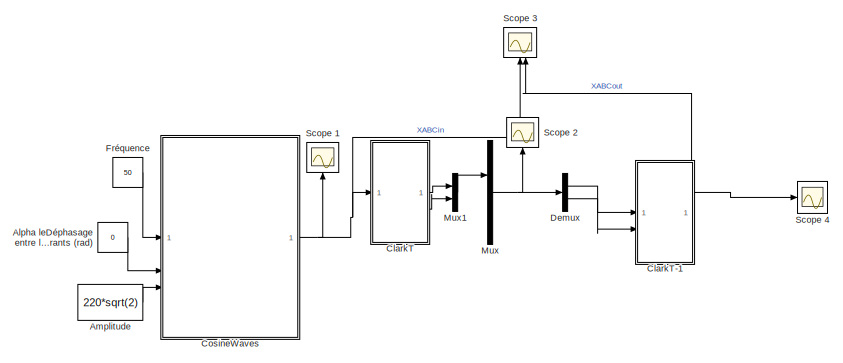
[diagram: root canvas - part 1/2, top center region]
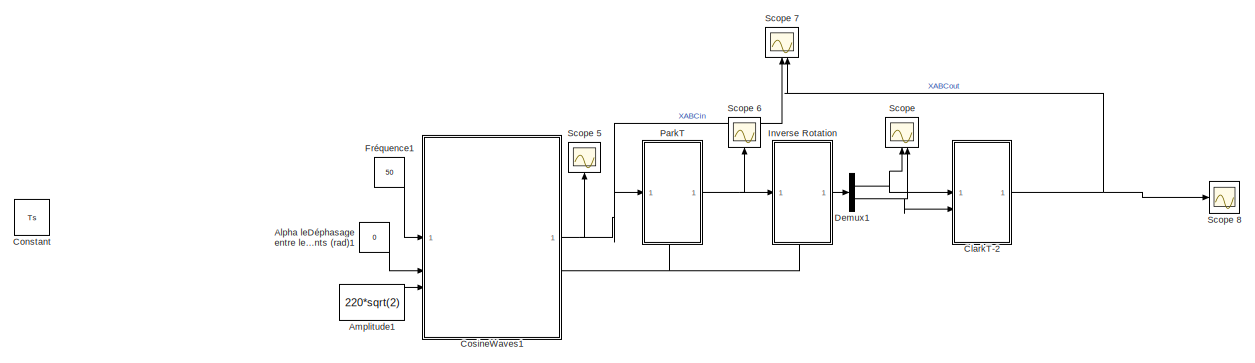
[diagram: root canvas - part 2/2, full width, bottom band]
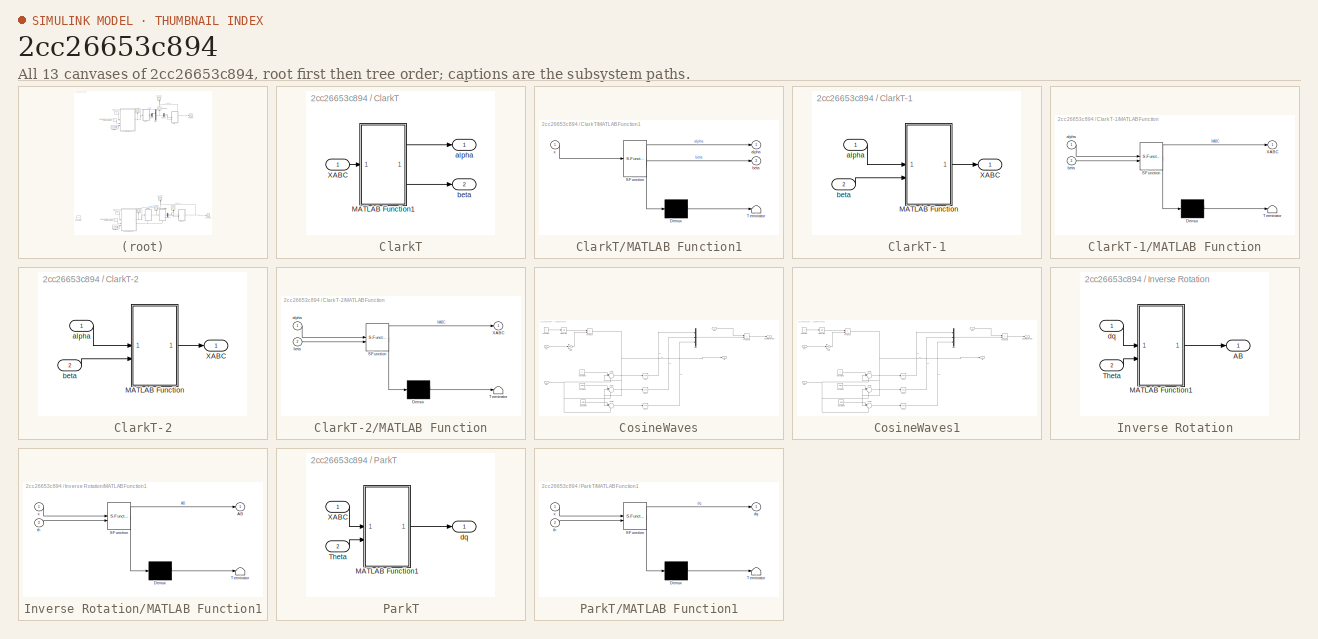
[diagram: thumbnail index - all 13 canvases of the model, root first then tree order]
MODEL slx_2cc26653c894
KIND model
CONFIG AbsTol = auto
CONFIG EnableMultiTasking = off
CONFIG FixedStep = 1e-5
CONFIG MaxStep = auto
CONFIG MinStep = auto
CONFIG RelTol = 1e-3
CONFIG SampleTimeConstraint = Unconstrained
CONFIG SolverName = ode4
CONFIG StartTime = 0.0
CONFIG StopTime = 10.0
BLOCK [Constant] Alpha leDéphasage entre les courants (rad)
  Value = 0
BLOCK [Constant] Alpha leDéphasage entre les courants (rad)1
  Value = 0
BLOCK [Constant] Amplitude
  Value = 220*sqrt(2)
BLOCK [Constant] Amplitude1
  Value = 220*sqrt(2)
BLOCK [SubSystem] ClarkT
BLOCK [SubSystem] ClarkT-1
BLOCK [SubSystem] ClarkT-1/MATLAB Function
  ErrorFcn = Stateflow.Translate.translate
  PermitHierarchicalResolution = ExplicitOnly
  SFBlockType = MATLAB Function
  TreatAsAtomicUnit = on
BLOCK [Demux] ClarkT-1/MATLAB Function/ Demux 
  Outputs = 1
BLOCK [S-Function] ClarkT-1/MATLAB Function/ SFunction 
  EnableBusSupport = on
  FunctionName = sf_sfun
  PortCounts = [2 2]
  SFcnIsStateOwnerBlock = off
  SFunctionDeploymentMode = off
  Tag = Stateflow S-Function 2
BLOCK [Terminator] ClarkT-1/MATLAB Function/ Terminator 
BLOCK [Outport] ClarkT-1/MATLAB Function/XABC
BLOCK [Inport] ClarkT-1/MATLAB Function/alpha
BLOCK [Inport] ClarkT-1/MATLAB Function/beta
  Port = 2
BLOCK [Outport] ClarkT-1/XABC
BLOCK [Inport] ClarkT-1/alpha
BLOCK [Inport] ClarkT-1/beta
  Port = 2
BLOCK [SubSystem] ClarkT-2
BLOCK [SubSystem] ClarkT-2/MATLAB Function
  ErrorFcn = Stateflow.Translate.translate
  PermitHierarchicalResolution = ExplicitOnly
  SFBlockType = MATLAB Function
  TreatAsAtomicUnit = on
BLOCK [Demux] ClarkT-2/MATLAB Function/ Demux 
  Outputs = 1
BLOCK [S-Function] ClarkT-2/MATLAB Function/ SFunction 
  EnableBusSupport = on
  FunctionName = sf_sfun
  PortCounts = [2 2]
  SFcnIsStateOwnerBlock = off
  SFunctionDeploymentMode = off
  Tag = Stateflow S-Function 3
BLOCK [Terminator] ClarkT-2/MATLAB Function/ Terminator 
BLOCK [Outport] ClarkT-2/MATLAB Function/XABC
BLOCK [Inport] ClarkT-2/MATLAB Function/alpha
BLOCK [Inport] ClarkT-2/MATLAB Function/beta
  Port = 2
BLOCK [Outport] ClarkT-2/XABC
BLOCK [Inport] ClarkT-2/alpha
BLOCK [Inport] ClarkT-2/beta
  Port = 2
BLOCK [SubSystem] ClarkT/MATLAB Function1
  ErrorFcn = Stateflow.Translate.translate
  PermitHierarchicalResolution = ExplicitOnly
  SFBlockType = MATLAB Function
  TreatAsAtomicUnit = on
BLOCK [Demux] ClarkT/MATLAB Function1/ Demux 
  Outputs = 1
BLOCK [S-Function] ClarkT/MATLAB Function1/ SFunction 
  EnableBusSupport = on
  FunctionName = sf_sfun
  PortCounts = [1 3]
  SFcnIsStateOwnerBlock = off
  SFunctionDeploymentMode = off
  Tag = Stateflow S-Function 1
BLOCK [Terminator] ClarkT/MATLAB Function1/ Terminator 
BLOCK [Outport] ClarkT/MATLAB Function1/alpha
BLOCK [Outport] ClarkT/MATLAB Function1/beta
  Port = 2
BLOCK [Inport] ClarkT/MATLAB Function1/x
BLOCK [Inport] ClarkT/XABC
BLOCK [Outport] ClarkT/alpha
BLOCK [Outport] ClarkT/beta
  Port = 2
BLOCK [Constant] Constant
  Commented = on
  Value = Ts
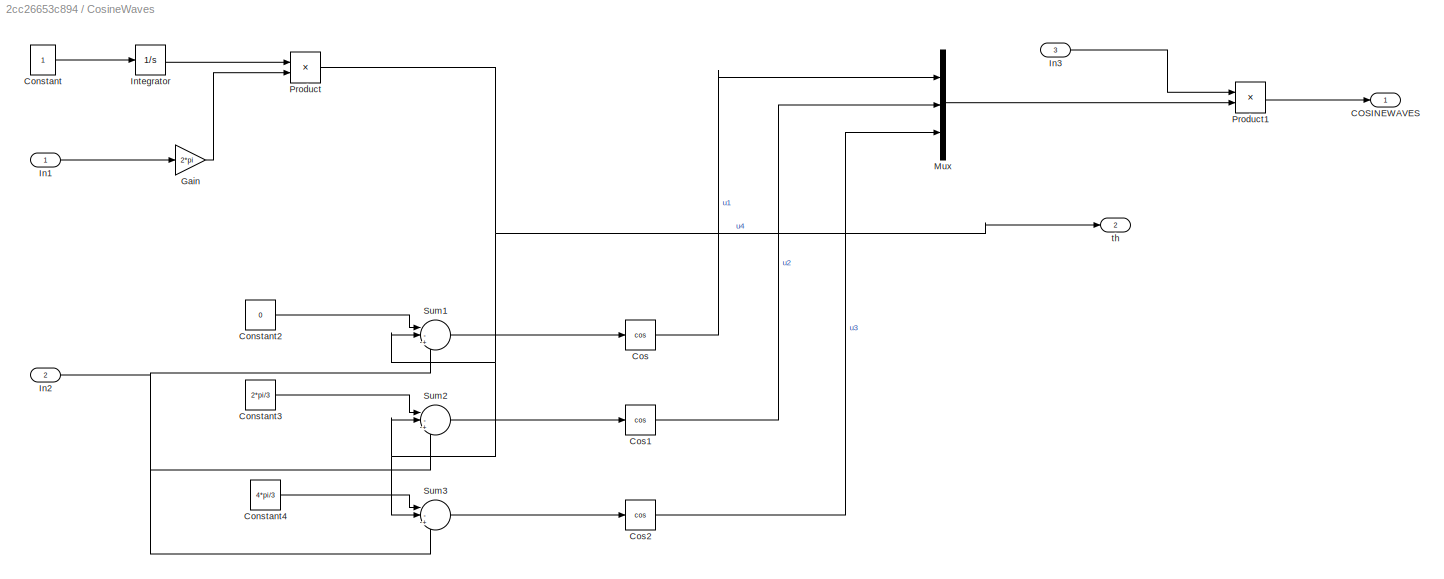
BLOCK [SubSystem] CosineWaves
BLOCK [Outport] CosineWaves/COSINEWAVES
BLOCK [Constant] CosineWaves/Constant
BLOCK [Constant] CosineWaves/Constant2
  Value = 0
BLOCK [Constant] CosineWaves/Constant3
  Value = 2*pi/3
BLOCK [Constant] CosineWaves/Constant4
  Value = 4*pi/3
BLOCK [Trigonometry] CosineWaves/Cos
  Operator = cos
BLOCK [Trigonometry] CosineWaves/Cos1
  Operator = cos
BLOCK [Trigonometry] CosineWaves/Cos2
  Operator = cos
BLOCK [Gain] CosineWaves/Gain
  Gain = 2*pi
BLOCK [Inport] CosineWaves/In1
BLOCK [Inport] CosineWaves/In2
  Port = 2
BLOCK [Inport] CosineWaves/In3
  Port = 3
BLOCK [Integrator] CosineWaves/Integrator
BLOCK [Mux] CosineWaves/Mux
  DisplayOption = bar
  Inputs = 3
BLOCK [Product] CosineWaves/Product
BLOCK [Product] CosineWaves/Product1
BLOCK [Sum] CosineWaves/Sum1
  Inputs = |-+|+
  NameLocation = top
BLOCK [Sum] CosineWaves/Sum2
  Inputs = |-+|+
  NameLocation = top
BLOCK [Sum] CosineWaves/Sum3
  Inputs = |-+|+
  NameLocation = top
BLOCK [Outport] CosineWaves/th
  Port = 2
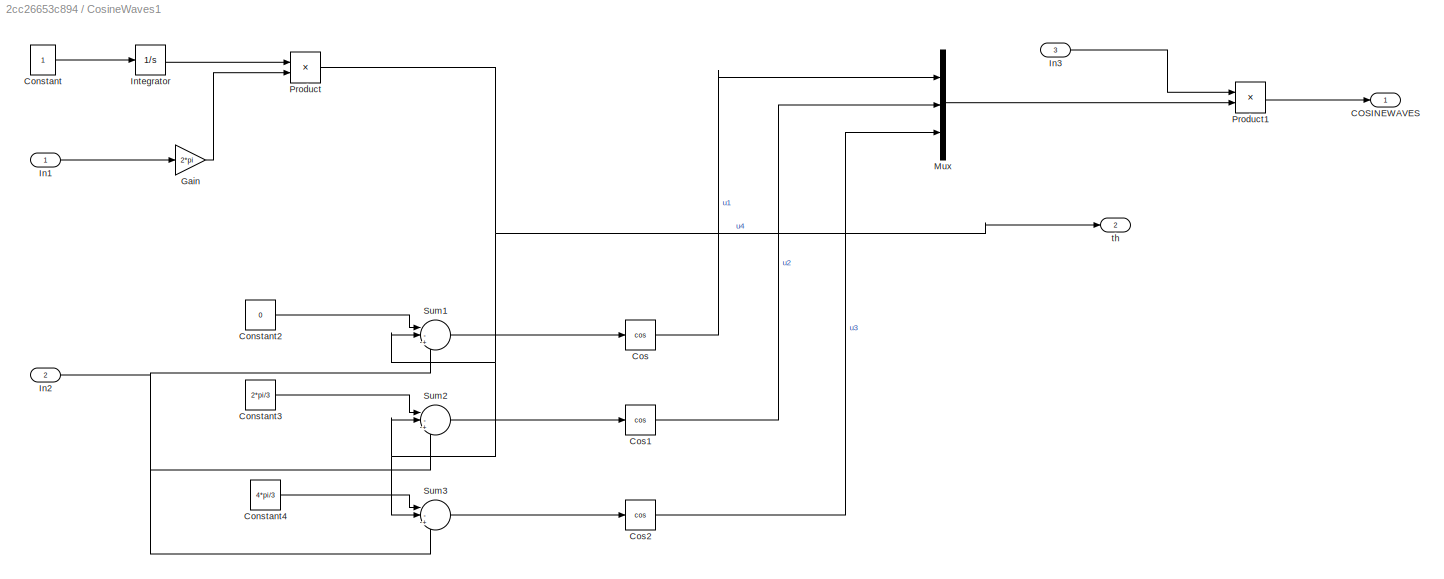
BLOCK [SubSystem] CosineWaves1
BLOCK [Outport] CosineWaves1/COSINEWAVES
BLOCK [Constant] CosineWaves1/Constant
BLOCK [Constant] CosineWaves1/Constant2
  Value = 0
BLOCK [Constant] CosineWaves1/Constant3
  Value = 2*pi/3
BLOCK [Constant] CosineWaves1/Constant4
  Value = 4*pi/3
BLOCK [Trigonometry] CosineWaves1/Cos
  Operator = cos
BLOCK [Trigonometry] CosineWaves1/Cos1
  Operator = cos
BLOCK [Trigonometry] CosineWaves1/Cos2
  Operator = cos
BLOCK [Gain] CosineWaves1/Gain
  Gain = 2*pi
BLOCK [Inport] CosineWaves1/In1
BLOCK [Inport] CosineWaves1/In2
  Port = 2
BLOCK [Inport] CosineWaves1/In3
  Port = 3
BLOCK [Integrator] CosineWaves1/Integrator
BLOCK [Mux] CosineWaves1/Mux
  DisplayOption = bar
  Inputs = 3
BLOCK [Product] CosineWaves1/Product
BLOCK [Product] CosineWaves1/Product1
BLOCK [Sum] CosineWaves1/Sum1
  Inputs = |-+|+
  NameLocation = top
BLOCK [Sum] CosineWaves1/Sum2
  Inputs = |-+|+
  NameLocation = top
BLOCK [Sum] CosineWaves1/Sum3
  Inputs = |-+|+
  NameLocation = top
BLOCK [Outport] CosineWaves1/th
  Port = 2
BLOCK [Demux] Demux
  Outputs = 2
BLOCK [Demux] Demux1
  Outputs = 2
BLOCK [Constant] Fréquence
  Value = 50
BLOCK [Constant] Fréquence1
  Value = 50
BLOCK [SubSystem] Inverse Rotation
  PortSchema = {"entries":[{"content":{"sides":[{"content":{"connectorIds":["In1"]},"type":"ConnectorPlacement.EquallySpacedRectSide","uuid":"228dfcfc-5d6b-4d2b-a954-ee5f3fee8856"},{"content":{"connectorIds":["Out1"],"side":"RIGHT"},"type":"ConnectorPlacement.EquallySpacedRectSide","uuid":"1b1b4c30-bceb-4aa5-9a3a-183aa9b64903"},{"content":{"connectorIds":[],"side":"TOP"},"type":"ConnectorPlacement.EquallySpacedR...<+389ch>
BLOCK [Outport] Inverse Rotation/AB
BLOCK [SubSystem] Inverse Rotation/MATLAB Function1
  ErrorFcn = Stateflow.Translate.translate
  PermitHierarchicalResolution = ExplicitOnly
  SFBlockType = MATLAB Function
  TreatAsAtomicUnit = on
BLOCK [Demux] Inverse Rotation/MATLAB Function1/ Demux 
  Outputs = 1
BLOCK [S-Function] Inverse Rotation/MATLAB Function1/ SFunction 
  EnableBusSupport = on
  FunctionName = sf_sfun
  PortCounts = [2 2]
  SFcnIsStateOwnerBlock = off
  SFunctionDeploymentMode = off
  Tag = Stateflow S-Function 5
BLOCK [Terminator] Inverse Rotation/MATLAB Function1/ Terminator 
BLOCK [Outport] Inverse Rotation/MATLAB Function1/AB
BLOCK [Inport] Inverse Rotation/MATLAB Function1/th
  Port = 2
BLOCK [Inport] Inverse Rotation/MATLAB Function1/x
BLOCK [Inport] Inverse Rotation/Theta
  Port = 2
BLOCK [Inport] Inverse Rotation/dq
BLOCK [Mux] Mux
  DisplayOption = bar
  Inputs = 1
BLOCK [Mux] Mux1
  DisplayOption = bar
  Inputs = 2
BLOCK [SubSystem] ParkT
  PortSchema = {"entries":[{"content":{"sides":[{"content":{"connectorIds":["In1"]},"type":"ConnectorPlacement.EquallySpacedRectSide","uuid":"228dfcfc-5d6b-4d2b-a954-ee5f3fee8856"},{"content":{"connectorIds":["Out1"],"side":"RIGHT"},"type":"ConnectorPlacement.EquallySpacedRectSide","uuid":"1b1b4c30-bceb-4aa5-9a3a-183aa9b64903"},{"content":{"connectorIds":[],"side":"TOP"},"type":"ConnectorPlacement.EquallySpacedR...<+389ch>
BLOCK [SubSystem] ParkT/MATLAB Function1
  ErrorFcn = Stateflow.Translate.translate
  PermitHierarchicalResolution = ExplicitOnly
  SFBlockType = MATLAB Function
  TreatAsAtomicUnit = on
BLOCK [Demux] ParkT/MATLAB Function1/ Demux 
  Outputs = 1
BLOCK [S-Function] ParkT/MATLAB Function1/ SFunction 
  EnableBusSupport = on
  FunctionName = sf_sfun
  PortCounts = [2 2]
  SFcnIsStateOwnerBlock = off
  SFunctionDeploymentMode = off
  Tag = Stateflow S-Function 4
BLOCK [Terminator] ParkT/MATLAB Function1/ Terminator 
BLOCK [Outport] ParkT/MATLAB Function1/dq
BLOCK [Inport] ParkT/MATLAB Function1/th
  Port = 2
BLOCK [Inport] ParkT/MATLAB Function1/x
BLOCK [Inport] ParkT/Theta
  Port = 2
BLOCK [Inport] ParkT/XABC
BLOCK [Outport] ParkT/dq
BLOCK [Scope] Scope
  Floating = off
  NameLocation = right
  NumInputPorts = 2
  ScopeSpecificationString = Simulink.scopes.TimeScopeBlockCfg('CurrentConfiguration', extmgr.ConfigurationSet(extmgr.Configuration('Core','General UI',true),extmgr.Configuration('Core','Source UI',true),extmgr.Configuration('Sources','WiredSimulink',true,'DataLoggingVariableName','ScopeData5'),extmgr.Configuration('Visuals','Time Domain',true,'SerializedDisplays',{struct('MinYLimReal','-331.85306','MaxYLimReal','325.63953','...<+1436ch>
BLOCK [Scope] Scope 1
  Floating = off
  NameLocation = right
  NumInputPorts = 1
  ScopeSpecificationString = Simulink.scopes.TimeScopeBlockCfg('CurrentConfiguration', extmgr.ConfigurationSet(extmgr.Configuration('Core','General UI',true),extmgr.Configuration('Core','Source UI',true),extmgr.Configuration('Sources','WiredSimulink',true,'DataLoggingVariableName','ScopeData1'),extmgr.Configuration('Visuals','Time Domain',true,'SerializedDisplays',{struct('MinYLimReal','-388.90873','MaxYLimReal','388.90873','...<+1760ch>
BLOCK [Scope] Scope 2
  Floating = off
  NameLocation = right
  NumInputPorts = 1
  ScopeSpecificationString = Simulink.scopes.TimeScopeBlockCfg('CurrentConfiguration', extmgr.ConfigurationSet(extmgr.Configuration('Core','General UI',true),extmgr.Configuration('Core','Source UI',true),extmgr.Configuration('Sources','WiredSimulink',true,'DataLoggingVariableName','ScopeData2'),extmgr.Configuration('Visuals','Time Domain',true,'SerializedDisplays',{struct('MinYLimReal','-202.28212','MaxYLimReal','313.03107','...<+1470ch>
BLOCK [Scope] Scope 3
  Floating = off
  NameLocation = right
  NumInputPorts = 2
  ScopeSpecificationString = Simulink.scopes.TimeScopeBlockCfg('CurrentConfiguration', extmgr.ConfigurationSet(extmgr.Configuration('Core','General UI',true),extmgr.Configuration('Core','Source UI',true),extmgr.Configuration('Sources','WiredSimulink',true,'DataLoggingVariableName','ScopeData3'),extmgr.Configuration('Visuals','Time Domain',true,'SerializedDisplays',{struct('MinYLimReal','-382.33024','MaxYLimReal','347.55612','...<+2015ch>
BLOCK [Scope] Scope 4
  Floating = off
  NumInputPorts = 1
  ScopeSpecificationString = Simulink.scopes.TimeScopeBlockCfg('CurrentConfiguration', extmgr.ConfigurationSet(extmgr.Configuration('Core','General UI',true),extmgr.Configuration('Core','Source UI',true),extmgr.Configuration('Sources','WiredSimulink',true),extmgr.Configuration('Visuals','Time Domain',true,'SerializedDisplays',{struct('MinYLimReal','-388.90873','MaxYLimReal','388.90873','YLabelReal','','MinYLimMag',' 0.00000',...<+1431ch>
BLOCK [Scope] Scope 5
  Floating = off
  NameLocation = right
  NumInputPorts = 1
  ScopeSpecificationString = Simulink.scopes.TimeScopeBlockCfg('CurrentConfiguration', extmgr.ConfigurationSet(extmgr.Configuration('Core','General UI',true),extmgr.Configuration('Core','Source UI',true),extmgr.Configuration('Sources','WiredSimulink',true,'DataLoggingVariableName','ScopeData1'),extmgr.Configuration('Visuals','Time Domain',true,'SerializedDisplays',{struct('MinYLimReal','-388.90873','MaxYLimReal','388.90873','...<+1760ch>
BLOCK [Scope] Scope 6
  Floating = off
  NumInputPorts = 1
  ScopeSpecificationString = Simulink.scopes.TimeScopeBlockCfg('CurrentConfiguration', extmgr.ConfigurationSet(extmgr.Configuration('Core','General UI',true),extmgr.Configuration('Core','Source UI',true),extmgr.Configuration('Sources','WiredSimulink',true,'DataLoggingVariableName','ScopeData2'),extmgr.Configuration('Visuals','Time Domain',true,'SerializedDisplays',{struct('MinYLimReal','-202.28212','MaxYLimReal','313.03107','...<+1461ch>
BLOCK [Scope] Scope 7
  Floating = off
  NameLocation = right
  NumInputPorts = 2
  ScopeSpecificationString = Simulink.scopes.TimeScopeBlockCfg('CurrentConfiguration', extmgr.ConfigurationSet(extmgr.Configuration('Core','General UI',true),extmgr.Configuration('Core','Source UI',true),extmgr.Configuration('Sources','WiredSimulink',true,'DataLoggingVariableName','ScopeData3'),extmgr.Configuration('Visuals','Time Domain',true,'SerializedDisplays',{struct('MinYLimReal','-310.12491','MaxYLimReal','341.29714','...<+2013ch>
BLOCK [Scope] Scope 8
  Floating = off
  NumInputPorts = 1
  ScopeSpecificationString = Simulink.scopes.TimeScopeBlockCfg('CurrentConfiguration', extmgr.ConfigurationSet(extmgr.Configuration('Core','General UI',true),extmgr.Configuration('Core','Source UI',true),extmgr.Configuration('Sources','WiredSimulink',true,'DataLoggingVariableName','ScopeData4'),extmgr.Configuration('Visuals','Time Domain',true,'SerializedDisplays',{struct('MinYLimReal','-388.90873','MaxYLimReal','388.90873','...<+1433ch>
LINE Alpha leDéphasage entre les courants (rad)1:1 -> CosineWaves1:2
LINE Alpha leDéphasage entre les courants (rad):1 -> CosineWaves:2
LINE Amplitude1:1 -> CosineWaves1:3
LINE Amplitude:1 -> CosineWaves:3
LINE ClarkT-1/MATLAB Function:1 -> ClarkT-1/XABC:1
LINE ClarkT-1/alpha:1 -> ClarkT-1/MATLAB Function:1
LINE ClarkT-1/beta:1 -> ClarkT-1/MATLAB Function:2
NET ClarkT-1:1 -> Scope 3:2, Scope 4:1
LINE ClarkT-2/MATLAB Function:1 -> ClarkT-2/XABC:1
LINE ClarkT-2/alpha:1 -> ClarkT-2/MATLAB Function:1
LINE ClarkT-2/beta:1 -> ClarkT-2/MATLAB Function:2
NET ClarkT-2:1 -> Scope 7:2, Scope 8:1
LINE ClarkT/MATLAB Function1:1 -> ClarkT/alpha:1
LINE ClarkT/MATLAB Function1:2 -> ClarkT/beta:1
LINE ClarkT/XABC:1 -> ClarkT/MATLAB Function1:1
LINE ClarkT:1 -> Mux1:1
LINE ClarkT:2 -> Mux1:2
LINE CosineWaves/Constant2:1 -> CosineWaves/Sum1:1
LINE CosineWaves/Constant3:1 -> CosineWaves/Sum2:1
LINE CosineWaves/Constant4:1 -> CosineWaves/Sum3:1
LINE CosineWaves/Constant:1 -> CosineWaves/Integrator:1
LINE CosineWaves/Cos1:1 -> CosineWaves/Mux:2
LINE CosineWaves/Cos2:1 -> CosineWaves/Mux:3
LINE CosineWaves/Cos:1 -> CosineWaves/Mux:1
LINE CosineWaves/Gain:1 -> CosineWaves/Product:2
LINE CosineWaves/In1:1 -> CosineWaves/Gain:1
NET CosineWaves/In2:1 -> CosineWaves/Sum1:3, CosineWaves/Sum2:3, CosineWaves/Sum3:3
LINE CosineWaves/In3:1 -> CosineWaves/Product1:1
LINE CosineWaves/Integrator:1 -> CosineWaves/Product:1
LINE CosineWaves/Mux:1 -> CosineWaves/Product1:2
LINE CosineWaves/Product1:1 -> CosineWaves/COSINEWAVES:1
NET CosineWaves/Product:1 -> CosineWaves/Sum1:2, CosineWaves/Sum2:2, CosineWaves/Sum3:2, CosineWaves/th:1
LINE CosineWaves/Sum1:1 -> CosineWaves/Cos:1
LINE CosineWaves/Sum2:1 -> CosineWaves/Cos1:1
LINE CosineWaves/Sum3:1 -> CosineWaves/Cos2:1
LINE CosineWaves1/Constant2:1 -> CosineWaves1/Sum1:1
LINE CosineWaves1/Constant3:1 -> CosineWaves1/Sum2:1
LINE CosineWaves1/Constant4:1 -> CosineWaves1/Sum3:1
LINE CosineWaves1/Constant:1 -> CosineWaves1/Integrator:1
LINE CosineWaves1/Cos1:1 -> CosineWaves1/Mux:2
LINE CosineWaves1/Cos2:1 -> CosineWaves1/Mux:3
LINE CosineWaves1/Cos:1 -> CosineWaves1/Mux:1
LINE CosineWaves1/Gain:1 -> CosineWaves1/Product:2
LINE CosineWaves1/In1:1 -> CosineWaves1/Gain:1
NET CosineWaves1/In2:1 -> CosineWaves1/Sum1:3, CosineWaves1/Sum2:3, CosineWaves1/Sum3:3
LINE CosineWaves1/In3:1 -> CosineWaves1/Product1:1
LINE CosineWaves1/Integrator:1 -> CosineWaves1/Product:1
LINE CosineWaves1/Mux:1 -> CosineWaves1/Product1:2
LINE CosineWaves1/Product1:1 -> CosineWaves1/COSINEWAVES:1
NET CosineWaves1/Product:1 -> CosineWaves1/Sum1:2, CosineWaves1/Sum2:2, CosineWaves1/Sum3:2, CosineWaves1/th:1
LINE CosineWaves1/Sum1:1 -> CosineWaves1/Cos:1
LINE CosineWaves1/Sum2:1 -> CosineWaves1/Cos1:1
LINE CosineWaves1/Sum3:1 -> CosineWaves1/Cos2:1
NET CosineWaves1:1 -> ParkT:1, Scope 5:1, Scope 7:1
NET CosineWaves1:2 -> Inverse Rotation:2, ParkT:2
NET CosineWaves:1 -> ClarkT:1, Scope 1:1, Scope 3:1
NET Demux1:1 -> ClarkT-2:1, Scope:1
NET Demux1:2 -> ClarkT-2:2, Scope:2
LINE Demux:1 -> ClarkT-1:1
LINE Demux:2 -> ClarkT-1:2
LINE Fréquence1:1 -> CosineWaves1:1
LINE Fréquence:1 -> CosineWaves:1
LINE Inverse Rotation/MATLAB Function1:1 -> Inverse Rotation/AB:1
LINE Inverse Rotation/Theta:1 -> Inverse Rotation/MATLAB Function1:2
LINE Inverse Rotation/dq:1 -> Inverse Rotation/MATLAB Function1:1
LINE Inverse Rotation:1 -> Demux1:1
LINE Mux1:1 -> Mux:1
NET Mux:1 -> Demux:1, Scope 2:1
LINE ParkT/MATLAB Function1:1 -> ParkT/dq:1
LINE ParkT/Theta:1 -> ParkT/MATLAB Function1:2
LINE ParkT/XABC:1 -> ParkT/MATLAB Function1:1
NET ParkT:1 -> Inverse Rotation:1, Scope 6:1
note: NET lines group one-source signal fan-out (src -> all destinations, sorted); 1:1 wires keep LINE
CHART ClarkT/MATLAB Function1 states=1 transitions=1
  STATE_LABEL 'eML_blk_kernel()'
  STATE_LABEL 'SCRIPT:\nfunction [alpha,beta] = Clark(x)\nP=(2/3)*[ cos(0) cos(0-2*pi/3) cos(0+2*pi/3);\n         -sin(0) -sin(0-2*pi/3) -sin(0+2*pi/3)  ];\nprod=P*x;\nalpha=prod(1);\nbeta=prod(2);'
CHART ClarkT-1/MATLAB Function states=1 transitions=1
  STATE_LABEL 'eML_blk_kernel()'
  STATE_LABEL 'SCRIPT:\nfunction XABC= Clarkinv(alpha,beta)\n\nparkinv = [ cos(0),           -sin(0); \n          cos(0-2*pi/3), -sin(0-2*pi/3); \n          cos(0+2*pi/3), -sin(0+2*pi/3)];\n\nXABC = parkinv * [alpha;beta];\n\n% x1=temp(1);\n% x2=temp(2);\n% x3=temp(3);'
CHART ClarkT-2/MATLAB Function states=1 transitions=1
  STATE_LABEL 'eML_blk_kernel()'
  STATE_LABEL 'SCRIPT:\nfunction XABC= Clarkinv(alpha,beta)\n\nparkinv = [ cos(0),           -sin(0); \n          cos(0-2*pi/3), -sin(0-2*pi/3); \n          cos(0+2*pi/3), -sin(0+2*pi/3)];\n\nXABC = parkinv * [alpha;beta];\n\n% x1=temp(1);\n% x2=temp(2);\n% x3=temp(3);'
CHART ParkT/MATLAB Function1 states=1 transitions=1
  STATE_LABEL 'eML_blk_kernel()'
  STATE_LABEL 'SCRIPT:\nfunction dq = Park(x,th)\n% vd=(2/3)*(u1*cos(th)+u2*cos(th-2*pi/3)+u3*cos(th+2*pi/3));\n% vq=(2/3)*(-u1*sin(th)-u2*sin(th-2*pi/3)-u3*sin(th+2*pi/3));\nP=(2/3)*[ cos(th) cos(th-2*pi/3) cos(th+2*pi/3);\n         -sin(th) -sin(th-2*pi/3) -sin(th+2*pi/3)  ];\ndq=P*x;\n% xd=prod(1);\n% xq=prod(2);'
CHART Inverse Rotation/MATLAB Function1 states=1 transitions=1
  STATE_LABEL 'eML_blk_kernel()'
  STATE_LABEL 'SCRIPT:\nfunction AB = InvRot(x,th)\n\nP=[ cos(th) -sin(th);\n     sin(th) cos(th)];\n\nAB=P*x;\n'
CHART  states=0 transitions=0
CHART  states=0 transitions=0
CHART  states=0 transitions=0
CHART  states=0 transitions=0
CHART  states=0 transitions=0
